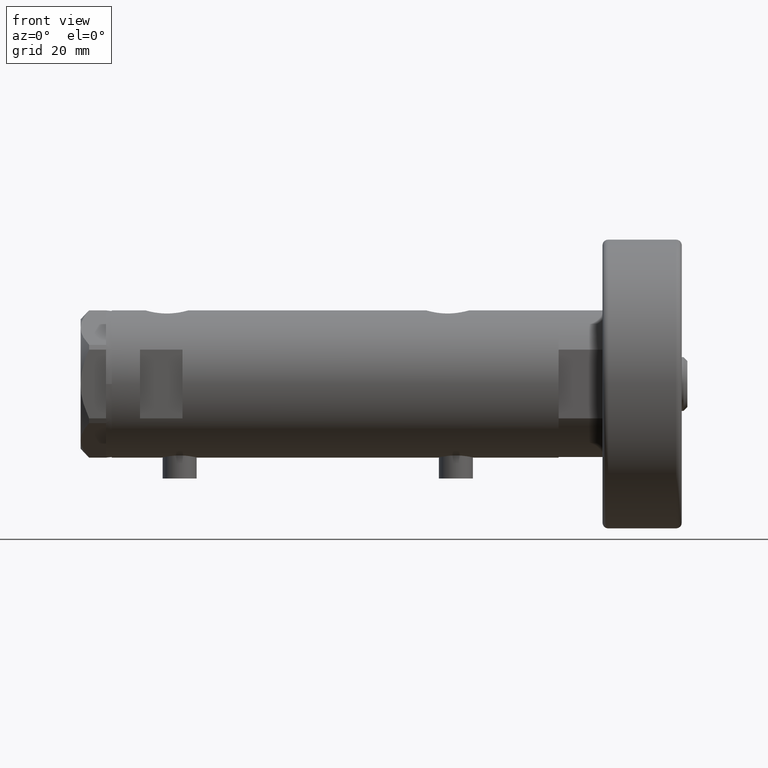
[diagram: clean part render]
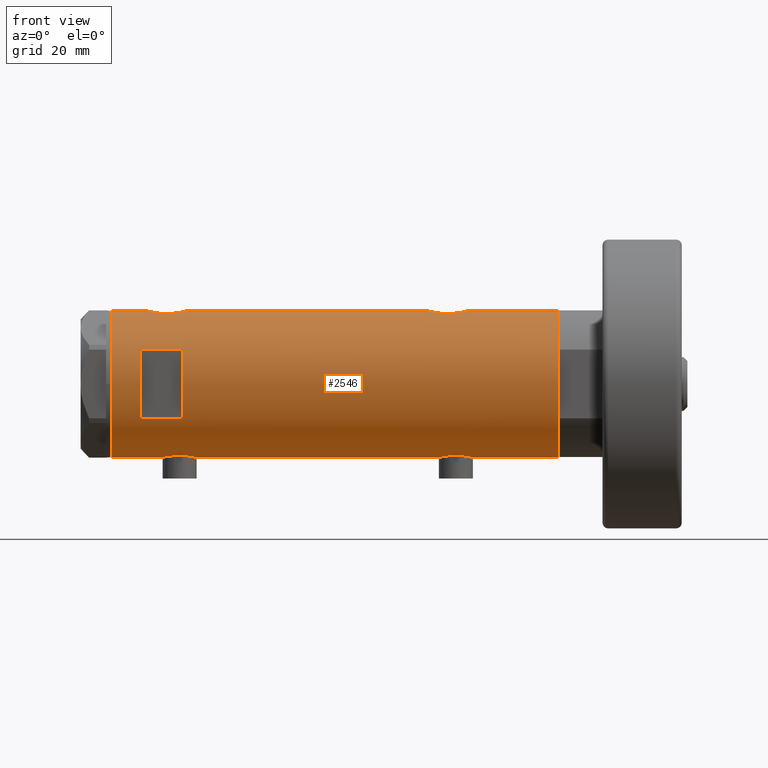
[diagram: same view with one face highlighted and labeled with its STEP entity id]
A machine part, front view. The second image highlights one B-rep face of the part: STEP entity #2546.
In plain terms, the highlighted cylindrical surface (partial cylindrical patch) has radius 26 mm, axis along (-1, -0, 0).
Its self-contained STEP definition (entity closure, byte-faithful):
#31 = CARTESIAN_POINT ( 'NONE',  ( 25.03461301890608581, -7.019803056070502478, 56.79816816893102782 ) ) ;
#55 = CARTESIAN_POINT ( 'NONE',  ( -26.00000000000000000, -0.4086738135806058381, -48.90000000000002700 ) ) ;
#60 = CARTESIAN_POINT ( 'NONE',  ( 24.90947356773250121, -7.451722770779340976, 58.46809158171851095 ) ) ;
#80 = CARTESIAN_POINT ( 'NONE',  ( -25.28632996747171902, -6.050474653715423479, -41.03088129158464881 ) ) ;
#88 = CARTESIAN_POINT ( 'NONE',  ( 25.17393786935995692, -6.507882790539421869, 55.68962666655968974 ) ) ;
#110 = CARTESIAN_POINT ( 'NONE',  ( -25.92425332714050867, -2.018894156999440526, 49.02103879324670288 ) ) ;
#119 = VECTOR ( 'NONE', #4141, 1000.000000000000000 ) ;
#122 = VECTOR ( 'NONE', #4718, 1000.000000000000000 ) ;
#124 = CARTESIAN_POINT ( 'NONE',  ( -12.12435565298214080, -23.00000000000000355, 53.95000000000001705 ) ) ;
#128 = CARTESIAN_POINT ( 'NONE',  ( 25.59500516383205593, -4.575229401795787965, -45.69787755065420498 ) ) ;
#157 = CARTESIAN_POINT ( 'NONE',  ( 25.78902964777116935, -3.336582972512946554, -46.48475840457737007 ) ) ;
#180 = CARTESIAN_POINT ( 'NONE',  ( 25.93085545515512891, -1.956676574435509686, -32.49272963169732265 ) ) ;
#210 = CIRCLE ( 'NONE', #2167, 26.00000000000000355 ) ;
#227 = CARTESIAN_POINT ( 'NONE',  ( -25.28632996747171902, -6.050474653715411932, 56.56911870841537393 ) ) ;
#238 = LINE ( 'NONE', #1392, #1158 ) ;
#258 = LINE ( 'NONE', #1875, #1916 ) ;
#275 = CARTESIAN_POINT ( 'NONE',  ( 12.12435565298214080, -23.00000000000000355, 68.95000000000003126 ) ) ;
#276 = CARTESIAN_POINT ( 'NONE',  ( -25.49846181844015192, -5.083495422175122513, 58.59177503382597507 ) ) ;
#298 = VECTOR ( 'NONE', #4416, 1000.000000000000000 ) ;
#421 = LINE ( 'NONE', #1294, #298 ) ;
#456 = CARTESIAN_POINT ( 'NONE',  ( 0.000000000000000000, 0.000000000000000000, -78.95000000000000284 ) ) ;
#471 = AXIS2_PLACEMENT_3D ( 'NONE', #3339, #2121, #2068 ) ;
#476 = CARTESIAN_POINT ( 'NONE',  ( -25.28680988956730857, -6.048472998962280300, 53.32372305811759361 ) ) ;
#491 = CARTESIAN_POINT ( 'NONE',  ( 24.89475831528845262, -7.500067228253130658, -40.24337428253534910 ) ) ;
#499 = CARTESIAN_POINT ( 'NONE',  ( -25.72076778631231164, -3.815670258243489599, -47.61687810531881127 ) ) ;
#506 = EDGE_CURVE ( 'NONE', #3918, #4106, #3116, .T. ) ;
#507 = CARTESIAN_POINT ( 'NONE',  ( 25.59500516383205948, -4.575229401795795958, 53.50212244934583339 ) ) ;
#517 = CARTESIAN_POINT ( 'NONE',  ( 25.00829008792691255, -7.115081037226466343, -37.32698996259182422 ) ) ;
#531 = CARTESIAN_POINT ( 'NONE',  ( 26.00000000000001066, -0.4982617809740563231, 51.95000000000000995 ) ) ;
#539 = CARTESIAN_POINT ( 'NONE',  ( 25.41756773306326522, -5.475260495868973898, -34.61859126343051685 ) ) ;
#548 = CARTESIAN_POINT ( 'NONE',  ( -25.24765475072630139, -6.209883762780014749, -41.83321815644903552 ) ) ;
#612 = CARTESIAN_POINT ( 'NONE',  ( -26.00000000000000355, -2.813058302341337106E-16, 61.20000000000000284 ) ) ;
#619 = DIRECTION ( 'NONE',  ( 0.000000000000000000, 0.000000000000000000, 1.000000000000000000 ) ) ;
#660 = CARTESIAN_POINT ( 'NONE',  ( -26.00000000000000355, -2.813058302341337106E-16, 61.20000000000000284 ) ) ;
#683 = CARTESIAN_POINT ( 'NONE',  ( -25.38662204309617110, -5.616507264474310368, 57.72199377719326208 ) ) ;
#686 = ORIENTED_EDGE ( 'NONE', *, *, #1417, .F. ) ;
#708 = EDGE_LOOP ( 'NONE', ( #1282, #5013, #4992, #4168 ) ) ;
#766 = LINE ( 'NONE', #3995, #2013 ) ;
#822 = CARTESIAN_POINT ( 'NONE',  ( 25.00829008792692321, -7.115081037226465455, 61.87301003740819993 ) ) ;
#827 = EDGE_CURVE ( 'NONE', #4106, #3895, #421, .T. ) ;
#845 = CARTESIAN_POINT ( 'NONE',  ( -25.99999999999998934, -0.4144764235405737907, -36.39999999999999147 ) ) ;
#869 = CARTESIAN_POINT ( 'NONE',  ( -25.57228991600092272, -4.705691472451704271, -46.78339690124655448 ) ) ;
#872 = CARTESIAN_POINT ( 'NONE',  ( -25.31551596256916525, -5.928819821281959612, 52.92988508095918831 ) ) ;
#875 = CARTESIAN_POINT ( 'NONE',  ( 25.31004928890826378, -5.952041021437455726, 64.01980599883506784 ) ) ;
#884 = CARTESIAN_POINT ( 'NONE',  ( 24.89478872726946079, -7.499966281647702182, -39.50178149365218871 ) ) ;
#895 = CARTESIAN_POINT ( 'NONE',  ( -25.42883439573801141, -5.424786127492342125, -39.51918542739093709 ) ) ;
#901 = CARTESIAN_POINT ( 'NONE',  ( -25.25025691038242570, -6.198787452305309920, 54.12558834604206481 ) ) ;
#903 = CARTESIAN_POINT ( 'NONE',  ( 25.72912156655465310, -3.765948295762495235, 52.94557024600777595 ) ) ;
#908 = CIRCLE ( 'NONE', #4872, 26.00000000000000355 ) ;
#911 = VERTEX_POINT ( 'NONE', #4564 ) ;
#918 = CARTESIAN_POINT ( 'NONE',  ( 25.17393786935995692, -6.507882790539420981, -43.51037333344031310 ) ) ;
#922 = ORIENTED_EDGE ( 'NONE', *, *, #3291, .F. ) ;
#926 = CARTESIAN_POINT ( 'NONE',  ( -25.25025691038241860, -6.198787452305317025, -43.47441165395796503 ) ) ;
#931 = CARTESIAN_POINT ( 'NONE',  ( -25.52190669608696183, -4.968444991210422934, 51.13658907807515419 ) ) ;
#947 = CARTESIAN_POINT ( 'NONE',  ( -25.85385060263651269, -2.778671585188184689, -37.03685548695762009 ) ) ;
#958 = CARTESIAN_POINT ( 'NONE',  ( 24.95200646071794282, -7.307522494171283967, -41.45607564187277205 ) ) ;
#992 = CARTESIAN_POINT ( 'NONE',  ( 24.96672817551788270, -7.257586026187393458, -37.79615800278702409 ) ) ;
#1006 = CARTESIAN_POINT ( 'NONE',  ( -25.74330903162726614, -3.648508829439214285, 60.02867714715799963 ) ) ;
#1019 = CARTESIAN_POINT ( 'NONE',  ( 26.00000000000000355, 0.000000000000000000, -78.95000000000000284 ) ) ;
#1027 = CARTESIAN_POINT ( 'NONE',  ( -25.23758491649666169, -6.250144606721704577, 55.36011699571807299 ) ) ;
#1030 = VERTEX_POINT ( 'NONE', #5114 ) ;
#1053 = CARTESIAN_POINT ( 'NONE',  ( -25.95206678899177888, -1.628763264760260565, 60.99800813330215732 ) ) ;
#1062 = VERTEX_POINT ( 'NONE', #4669 ) ;
#1099 = EDGE_LOOP ( 'NONE', ( #4483, #4044, #1440, #1949, #4518, #922, #2185, #3519, #1826, #686, #1611, #4757 ) ) ;
#1158 = VECTOR ( 'NONE', #3811, 1000.000000000000000 ) ;
#1247 = CARTESIAN_POINT ( 'NONE',  ( -26.00000000000000000, -0.4086738135806028960, 48.70000000000000995 ) ) ;
#1252 = CARTESIAN_POINT ( 'NONE',  ( 25.01107424167500781, -7.102941973849612900, 57.02937151337422250 ) ) ;
#1254 = DIRECTION ( 'NONE',  ( 0.000000000000000000, 0.000000000000000000, 1.000000000000000000 ) ) ;
#1270 = CARTESIAN_POINT ( 'NONE',  ( -25.78943824387523165, -3.306687742228911375, -47.95754138783466658 ) ) ;
#1278 = DIRECTION ( 'NONE',  ( 1.000000000000000000, 0.000000000000000000, 0.000000000000000000 ) ) ;
#1282 = ORIENTED_EDGE ( 'NONE', *, *, #2339, .F. ) ;
#1288 = CARTESIAN_POINT ( 'NONE',  ( 25.52567976009756379, -4.956266804246105551, -34.09980072540906093 ) ) ;
#1294 = CARTESIAN_POINT ( 'NONE',  ( -26.00000000000000355, 3.184081677783118585E-15, -78.95000000000000284 ) ) ;
#1297 = EDGE_CURVE ( 'NONE', #4038, #1062, #2402, .T. ) ;
#1302 = CARTESIAN_POINT ( 'NONE',  ( 25.52449676677458612, -4.953491517965881386, 53.81325508665923962 ) ) ;
#1312 = CARTESIAN_POINT ( 'NONE',  ( 25.98599366666249466, -0.9828433289544072915, -32.29811598276526752 ) ) ;
#1325 = DIRECTION ( 'NONE',  ( 0.000000000000000000, 0.000000000000000000, 1.000000000000000000 ) ) ;
#1330 = CARTESIAN_POINT ( 'NONE',  ( -25.57228991600092627, -4.705691472451699831, 50.81660309875346826 ) ) ;
#1333 = CARTESIAN_POINT ( 'NONE',  ( 24.92415241886516242, -7.401968919186685092, 60.68323537444815940 ) ) ;
#1352 = CARTESIAN_POINT ( 'NONE',  ( -25.57167894663063024, -4.701762988462101944, -38.52719549807584798 ) ) ;
#1361 = CARTESIAN_POINT ( 'NONE',  ( 25.41756773306325456, -5.475260495868974786, 64.58140873656947178 ) ) ;
#1369 = CARTESIAN_POINT ( 'NONE',  ( 25.59665538672496155, -4.580438224580676732, -33.79110872287610334 ) ) ;
#1378 = CARTESIAN_POINT ( 'NONE',  ( -25.52274351135604391, -4.960534548086211970, -38.84248254659267729 ) ) ;
#1381 = CARTESIAN_POINT ( 'NONE',  ( -25.81232680456767170, -3.137210741985118290, 60.37113657221578933 ) ) ;
#1392 = CARTESIAN_POINT ( 'NONE',  ( 26.00000000000000355, 0.000000000000000000, -78.95000000000000284 ) ) ;
#1396 = CARTESIAN_POINT ( 'NONE',  ( 25.38125492692910612, -5.649348210287294059, -44.70694334346394072 ) ) ;
#1417 = EDGE_CURVE ( 'NONE', #3895, #3227, #4252, .T. ) ;
#1440 = ORIENTED_EDGE ( 'NONE', *, *, #3926, .T. ) ;
#1463 = CARTESIAN_POINT ( 'NONE',  ( -25.52274351135605102, -4.960534548086199536, 58.75751745340734544 ) ) ;
#1494 = CARTESIAN_POINT ( 'NONE',  ( 0.000000000000000000, 0.000000000000000000, 78.95000000000000284 ) ) ;
#1508 = CARTESIAN_POINT ( 'NONE',  ( 12.12435565298214080, -23.00000000000000355, -78.95000000000000284 ) ) ;
#1542 = VERTEX_POINT ( 'NONE', #3949 ) ;
#1571 = CARTESIAN_POINT ( 'NONE',  ( 25.98599366666249111, -0.9828433289544116214, 66.90188401723474954 ) ) ;
#1611 = ORIENTED_EDGE ( 'NONE', *, *, #827, .F. ) ;
#1679 = CARTESIAN_POINT ( 'NONE',  ( 25.30930190055639883, -5.959775463244125326, 54.87025956521971892 ) ) ;
#1694 = CARTESIAN_POINT ( 'NONE',  ( -25.42977453177914882, -5.420307583276860797, -45.78812271793364630 ) ) ;
#1696 = CARTESIAN_POINT ( 'NONE',  ( -25.99036913299955742, -0.8159609457881432659, 48.73968856968109264 ) ) ;
#1698 = CARTESIAN_POINT ( 'NONE',  ( 25.48871066912673200, -5.133852125086510121, 53.97709693256022234 ) ) ;
#1706 = CARTESIAN_POINT ( 'NONE',  ( 25.38109653984943748, -5.641393955635659374, -34.80180907551250158 ) ) ;
#1714 = CARTESIAN_POINT ( 'NONE',  ( -25.85288666140180780, -2.767917424206675747, 49.34257790010328648 ) ) ;
#1746 = CARTESIAN_POINT ( 'NONE',  ( 25.62983961939740496, -4.376509667782458202, 53.35441500957042393 ) ) ;
#1758 = CARTESIAN_POINT ( 'NONE',  ( 25.17510548814053095, -6.503212750695464450, -35.98238212184651275 ) ) ;
#1760 = VERTEX_POINT ( 'NONE', #3744 ) ;
#1769 = CARTESIAN_POINT ( 'NONE',  ( -25.81160981652327280, -3.129523010631800606, -48.06392973722076079 ) ) ;
#1784 = DIRECTION ( 'NONE',  ( 1.000000000000000000, 0.000000000000000000, 0.000000000000000000 ) ) ;
#1787 = CARTESIAN_POINT ( 'NONE',  ( 25.98569226047905190, -0.9886551788957271825, -47.20082376600176133 ) ) ;
#1795 = CARTESIAN_POINT ( 'NONE',  ( 26.00000000000000355, -3.975025925197986111E-20, -32.25000000000000000 ) ) ;
#1826 = ORIENTED_EDGE ( 'NONE', *, *, #3147, .F. ) ;
#1827 = DIRECTION ( 'NONE',  ( 0.000000000000000000, 0.000000000000000000, 1.000000000000000000 ) ) ;
#1869 = CARTESIAN_POINT ( 'NONE',  ( -25.31538696791480447, -5.929326713517952818, 56.96796632208098998 ) ) ;
#1875 = CARTESIAN_POINT ( 'NONE',  ( 26.00000000000000355, 0.000000000000000000, -78.95000000000000284 ) ) ;
#1916 = VECTOR ( 'NONE', #3807, 1000.000000000000000 ) ;
#1930 = CARTESIAN_POINT ( 'NONE',  ( -26.00000000000000355, 3.184077527325983904E-15, -48.90000000000001279 ) ) ;
#1949 = ORIENTED_EDGE ( 'NONE', *, *, #1297, .F. ) ;
#1977 = CARTESIAN_POINT ( 'NONE',  ( 25.89059789403177092, -2.425642437452263156, 66.56377447242300605 ) ) ;
#2013 = VECTOR ( 'NONE', #1254, 1000.000000000000000 ) ;
#2049 = CARTESIAN_POINT ( 'NONE',  ( -25.67063510297210271, -4.128418051804850997, -37.95317424728735034 ) ) ;
#2054 = CARTESIAN_POINT ( 'NONE',  ( 24.96970063328116751, -7.247045583599690310, 57.50280785145197626 ) ) ;
#2056 = DIRECTION ( 'NONE',  ( 0.000000000000000000, 0.000000000000000000, 1.000000000000000000 ) ) ;
#2068 = DIRECTION ( 'NONE',  ( 1.776356839400250465E-15, 1.000000000000000000, 4.536969091016264466E-15 ) ) ;
#2077 = CARTESIAN_POINT ( 'NONE',  ( -25.28680988956730147, -6.048472998962283853, -44.27627694188245755 ) ) ;
#2089 = CARTESIAN_POINT ( 'NONE',  ( 24.91324908721446718, -7.438459228814661373, 60.44017499374191260 ) ) ;
#2101 = CARTESIAN_POINT ( 'NONE',  ( 25.03461301890608581, -7.019803056070506031, -42.40183183106896792 ) ) ;
#2107 = CARTESIAN_POINT ( 'NONE',  ( -25.64593536028936072, -4.278686337618966995, -38.08968397039122067 ) ) ;
#2121 = DIRECTION ( 'NONE',  ( -0.000000000000000000, -4.625929269271486900E-15, 1.000000000000000000 ) ) ;
#2122 = CARTESIAN_POINT ( 'NONE',  ( 25.30930190055640239, -5.959775463244125326, -44.32974043478029103 ) ) ;
#2129 = CARTESIAN_POINT ( 'NONE',  ( -25.23763877699558122, -6.249927116972450847, -42.85835527665468447 ) ) ;
#2167 = AXIS2_PLACEMENT_3D ( 'NONE', #3093, #3870, #1784 ) ;
#2175 = CARTESIAN_POINT ( 'NONE',  ( 24.92415241886515176, -7.401968919186680651, -38.51676462555185054 ) ) ;
#2185 = ORIENTED_EDGE ( 'NONE', *, *, #3183, .T. ) ;
#2188 = CARTESIAN_POINT ( 'NONE',  ( -25.99009752186832500, -0.8230863847107482423, 61.15917071406682481 ) ) ;
#2197 = CARTESIAN_POINT ( 'NONE',  ( 25.88994451797511331, -2.432613607265599498, -46.86140968713201005 ) ) ;
#2282 = CARTESIAN_POINT ( 'NONE',  ( -25.59645788645698872, -4.565358797148513226, 59.22330529203479443 ) ) ;
#2306 = EDGE_CURVE ( 'NONE', #1542, #3495, #3678, .T. ) ;
#2339 = EDGE_CURVE ( 'NONE', #3495, #4959, #4016, .T. ) ;
#2402 = B_SPLINE_CURVE_WITH_KNOTS ( 'NONE', 3,
 ( #3756, #4916, #1312, #180, #4557, #2913, #2892, #1369, #1288, #539, #1706, #4142, #2490, #1758, #4112, #517, #992, #2175, #4498, #4581, #884, #491, #4165, #958, #4530, #2570, #2101, #3788, #918, #2122, #1396, #3340, #4946, #128, #4976, #4195, #157, #2197, #3395, #1787, #4610, #2597 ),
 .UNSPECIFIED., .F., .F.,
 ( 4, 2, 2, 2, 2, 2, 2, 2, 2, 2, 2, 2, 2, 2, 2, 2, 2, 2, 2, 2, 4 ),
 ( 0.02357432247332888128, 0.02504731828495719570, 0.02652031409658551359, 0.02799330990821382800, 0.02946630571984214589, 0.03020280362565630136, 0.03093930153147046030, 0.03241229734309879207, 0.03388529315472712383, 0.03462179106054129318, 0.03535828896635545560, 0.03683128477798380818, 0.03756778268379799834, 0.03830428058961218157, 0.03977727640124056885, 0.04125027221286896306, 0.04198677011868315323, 0.04272326802449734340, 0.04419626383612573067, 0.04566925964775411795, 0.04714225545938250522 ),
 .UNSPECIFIED. ) ;
#2420 = CARTESIAN_POINT ( 'NONE',  ( 24.89854802586675930, -7.487520416261737033, 59.94815683577904508 ) ) ;
#2442 = CARTESIAN_POINT ( 'NONE',  ( -26.00000000000000355, -6.335391871414786776E-16, -36.39999999999999858 ) ) ;
#2447 = CARTESIAN_POINT ( 'NONE',  ( -25.81160981652327280, -3.129523010631799718, 49.53607026277927616 ) ) ;
#2477 = CARTESIAN_POINT ( 'NONE',  ( 25.98569226047905545, -0.9886551788957260722, 51.99917623399824151 ) ) ;
#2482 = CARTESIAN_POINT ( 'NONE',  ( 12.12435565298214080, -23.00000000000000355, 53.95000000000001705 ) ) ;
#2490 = CARTESIAN_POINT ( 'NONE',  ( 25.27534302296961854, -6.097250460344746159, -35.37590386902926554 ) ) ;
#2500 = CARTESIAN_POINT ( 'NONE',  ( -25.59645788645699227, -4.565358797148523884, -38.37669470796522120 ) ) ;
#2511 = CARTESIAN_POINT ( 'NONE',  ( 25.11342038069227200, -6.734617143597204425, 62.78770695790495893 ) ) ;
#2528 = CARTESIAN_POINT ( 'NONE',  ( -25.24022290516699485, -6.239518219915436426, -43.06597215938434431 ) ) ;
#2537 = CARTESIAN_POINT ( 'NONE',  ( 25.38109653984944103, -5.641393955635662039, 64.39819092448752258 ) ) ;
#2546 = ADVANCED_FACE ( 'NONE', ( #3286, #2887 ), #4522, .T. ) ;
#2556 = CARTESIAN_POINT ( 'NONE',  ( -25.99009752186832856, -0.8230863847107483533, -36.44082928593318371 ) ) ;
#2570 = CARTESIAN_POINT ( 'NONE',  ( 25.01107424167501136, -7.102941973849614676, -42.17062848662576613 ) ) ;
#2597 = CARTESIAN_POINT ( 'NONE',  ( 26.00000000000000355, 3.343657407582877388E-16, -47.25000000000000000 ) ) ;
#2612 = VERTEX_POINT ( 'NONE', #275 ) ;
#2694 = CARTESIAN_POINT ( 'NONE',  ( -25.57167894663061958, -4.701762988462087733, 59.07280450192418186 ) ) ;
#2752 = CARTESIAN_POINT ( 'NONE',  ( 26.00000000000000355, -0.4910237949823177406, 66.94999999999998863 ) ) ;
#2858 = EDGE_CURVE ( 'NONE', #3937, #5117, #4197, .T. ) ;
#2864 = CARTESIAN_POINT ( 'NONE',  ( 25.52567976009757089, -4.956266804246109103, 65.10019927459094902 ) ) ;
#2881 = CARTESIAN_POINT ( 'NONE',  ( -25.38744165544136777, -5.612847683295916212, -45.42987583238478067 ) ) ;
#2884 = CARTESIAN_POINT ( 'NONE',  ( 25.59665538672496865, -4.580438224580679396, 65.40889127712388529 ) ) ;
#2887 = FACE_BOUND ( 'NONE', #708, .T. ) ;
#2892 = CARTESIAN_POINT ( 'NONE',  ( 25.72873412774685775, -3.768477344985552424, -33.24712539855536164 ) ) ;
#2913 = CARTESIAN_POINT ( 'NONE',  ( 25.78993643992928853, -3.329561377902402697, -33.01178439721263658 ) ) ;
#2925 = CARTESIAN_POINT ( 'NONE',  ( -25.87202607293666645, -2.583404329177997116, -48.34473666854512430 ) ) ;
#2927 = VECTOR ( 'NONE', #619, 1000.000000000000000 ) ;
#2932 = CARTESIAN_POINT ( 'NONE',  ( -26.00000000000000355, 3.184077527313362130E-15, 48.70000000000000995 ) ) ;
#2954 = CARTESIAN_POINT ( 'NONE',  ( -25.71926338401909362, -3.813768894920912977, -37.69427860166183564 ) ) ;
#2978 = CARTESIAN_POINT ( 'NONE',  ( -25.92364458890659762, -2.026637113504532017, -36.72369009308525278 ) ) ;
#2988 = EDGE_CURVE ( 'NONE', #4959, #2612, #3501, .T. ) ;
#3012 = CARTESIAN_POINT ( 'NONE',  ( -25.24765475072630139, -6.209883762780005867, 55.76678184355100854 ) ) ;
#3033 = LINE ( 'NONE', #1019, #2927 ) ;
#3093 = CARTESIAN_POINT ( 'NONE',  ( 0.000000000000000000, 0.000000000000000000, 68.95000000000003126 ) ) ;
#3116 = B_SPLINE_CURVE_WITH_KNOTS ( 'NONE', 3,
 ( #1930, #55, #4506, #4903, #4092, #2925, #3689, #1769, #1270, #499, #4067, #869, #3277, #1694, #2881, #3350, #2077, #4540, #926, #2528, #2129, #4123, #548, #80, #3376, #4984, #895, #4958, #1378, #1352, #2500, #2107, #2049, #2954, #3768, #4565, #947, #2978, #3721, #2556, #845, #2442 ),
 .UNSPECIFIED., .F., .F.,
 ( 4, 2, 2, 2, 2, 2, 2, 2, 2, 2, 2, 2, 2, 2, 2, 2, 2, 2, 2, 2, 4 ),
 ( 0.01961238453869445370, 0.02083783025472768849, 0.02206327597076092328, 0.02267599882877753895, 0.02328872168679415461, 0.02451416740282739287, 0.02573961311886063114, 0.02696505883489386593, 0.02819050455092710072, 0.02880322740894371292, 0.02941595026696031817, 0.03064139598299353562, 0.03186684169902675307, 0.03309228741505997051, 0.03370501027307658271, 0.03431773313109318796, 0.03493045598910979321, 0.03554317884712640541, 0.03676862456315962979, 0.03799407027919286112, 0.03921951599522608550 ),
 .UNSPECIFIED. ) ;
#3142 = CARTESIAN_POINT ( 'NONE',  ( 26.00000000000000355, -3.975028449552882818E-20, 66.95000000000000284 ) ) ;
#3147 = EDGE_CURVE ( 'NONE', #3227, #1030, #5104, .T. ) ;
#3163 = EDGE_CURVE ( 'NONE', #2612, #1542, #210, .T. ) ;
#3183 = EDGE_CURVE ( 'NONE', #4911, #911, #238, .T. ) ;
#3227 = VERTEX_POINT ( 'NONE', #612 ) ;
#3277 = CARTESIAN_POINT ( 'NONE',  ( -25.52190669608696183, -4.968444991210430040, -46.46341092192485434 ) ) ;
#3282 = CARTESIAN_POINT ( 'NONE',  ( -25.95218276861526618, -1.627663810194429406, 48.90149019612395165 ) ) ;
#3286 = FACE_OUTER_BOUND ( 'NONE', #1099, .T. ) ;
#3291 = EDGE_CURVE ( 'NONE', #4911, #1760, #5075, .T. ) ;
#3326 = CARTESIAN_POINT ( 'NONE',  ( -25.72076778631231164, -3.815670258243487378, 49.98312189468122568 ) ) ;
#3329 = CARTESIAN_POINT ( 'NONE',  ( 25.78902964777116580, -3.336582972512951883, 52.71524159542262566 ) ) ;
#3339 = CARTESIAN_POINT ( 'NONE',  ( 0.000000000000000000, 0.000000000000000000, 53.95000000000012363 ) ) ;
#3340 = CARTESIAN_POINT ( 'NONE',  ( 25.48871066912673200, -5.133852125086511009, -45.22290306743978050 ) ) ;
#3350 = CARTESIAN_POINT ( 'NONE',  ( -25.31551596256916525, -5.928819821281963165, -44.67011491904084153 ) ) ;
#3360 = CARTESIAN_POINT ( 'NONE',  ( 26.00000000000000355, -7.221007372182803218E-17, 51.95000000000000284 ) ) ;
#3376 = CARTESIAN_POINT ( 'NONE',  ( -25.31538696791481868, -5.929326713517960812, -40.63203367791900433 ) ) ;
#3378 = CARTESIAN_POINT ( 'NONE',  ( 0.000000000000000000, 0.000000000000000000, -78.95000000000000284 ) ) ;
#3395 = CARTESIAN_POINT ( 'NONE',  ( 25.93098857934040424, -1.953835360821274847, -47.00773664702559529 ) ) ;
#3410 = DIRECTION ( 'NONE',  ( 1.000000000000000000, 0.000000000000000000, 0.000000000000000000 ) ) ;
#3413 = EDGE_CURVE ( 'NONE', #4038, #1760, #3033, .T. ) ;
#3464 = CARTESIAN_POINT ( 'NONE',  ( -25.92364458890658696, -2.026637113504536458, 60.87630990691475574 ) ) ;
#3494 = DIRECTION ( 'NONE',  ( 0.000000000000000000, 0.000000000000000000, 1.000000000000000000 ) ) ;
#3495 = VERTEX_POINT ( 'NONE', #124 ) ;
#3501 = LINE ( 'NONE', #1508, #122 ) ;
#3519 = ORIENTED_EDGE ( 'NONE', *, *, #3927, .F. ) ;
#3595 = CARTESIAN_POINT ( 'NONE',  ( 25.78993643992928497, -3.329561377902408914, 66.18821560278735205 ) ) ;
#3666 = CARTESIAN_POINT ( 'NONE',  ( 25.11243836838845667, -6.738202653785824836, 56.12043350844841427 ) ) ;
#3678 = LINE ( 'NONE', #3786, #119 ) ;
#3689 = CARTESIAN_POINT ( 'NONE',  ( -25.85288666140181491, -2.767917424206677079, -48.25742209989675047 ) ) ;
#3698 = CARTESIAN_POINT ( 'NONE',  ( 24.89478872726946079, -7.499966281647701294, 59.69821850634782123 ) ) ;
#3721 = CARTESIAN_POINT ( 'NONE',  ( -25.95206678899177888, -1.628763264760263230, -36.60199186669786542 ) ) ;
#3744 = CARTESIAN_POINT ( 'NONE',  ( 26.00000000000000355, -7.221007372182803218E-17, 51.95000000000000284 ) ) ;
#3756 = CARTESIAN_POINT ( 'NONE',  ( 26.00000000000000355, -3.975025925197986111E-20, -32.25000000000000000 ) ) ;
#3768 = CARTESIAN_POINT ( 'NONE',  ( -25.74330903162725903, -3.648508829439220946, -37.57132285284201600 ) ) ;
#3786 = CARTESIAN_POINT ( 'NONE',  ( -12.12435565298214080, -23.00000000000000355, -78.95000000000000284 ) ) ;
#3788 = CARTESIAN_POINT ( 'NONE',  ( 25.11243836838845667, -6.738202653785825724, -43.07956649155158146 ) ) ;
#3807 = DIRECTION ( 'NONE',  ( 0.000000000000000000, 0.000000000000000000, 1.000000000000000000 ) ) ;
#3811 = DIRECTION ( 'NONE',  ( 0.000000000000000000, 0.000000000000000000, 1.000000000000000000 ) ) ;
#3870 = DIRECTION ( 'NONE',  ( -0.000000000000000000, 0.000000000000000000, -1.000000000000000000 ) ) ;
#3890 = CARTESIAN_POINT ( 'NONE',  ( -26.00000000000000355, 3.184077527325983904E-15, -48.90000000000001279 ) ) ;
#3895 = VERTEX_POINT ( 'NONE', #4216 ) ;
#3906 = CARTESIAN_POINT ( 'NONE',  ( 26.00000000000000355, 0.000000000000000000, -78.95000000000000284 ) ) ;
#3918 = VERTEX_POINT ( 'NONE', #3890 ) ;
#3926 = EDGE_CURVE ( 'NONE', #5117, #1062, #258, .T. ) ;
#3927 = EDGE_CURVE ( 'NONE', #1030, #911, #908, .T. ) ;
#3937 = VERTEX_POINT ( 'NONE', #4705 ) ;
#3949 = CARTESIAN_POINT ( 'NONE',  ( -12.12435565298214080, -23.00000000000000355, 68.95000000000003126 ) ) ;
#3995 = CARTESIAN_POINT ( 'NONE',  ( -26.00000000000000355, 3.184081677783118585E-15, -78.95000000000000284 ) ) ;
#4016 = CIRCLE ( 'NONE', #471, 26.00000000000000355 ) ;
#4038 = VERTEX_POINT ( 'NONE', #1795 ) ;
#4044 = ORIENTED_EDGE ( 'NONE', *, *, #2858, .T. ) ;
#4047 = CARTESIAN_POINT ( 'NONE',  ( 24.95200646071793926, -7.307522494171281302, 57.74392435812723079 ) ) ;
#4067 = CARTESIAN_POINT ( 'NONE',  ( -25.67167563980648382, -4.129238867693854509, -47.35934056431105432 ) ) ;
#4074 = CARTESIAN_POINT ( 'NONE',  ( 25.17510548814053450, -6.503212750695461786, 63.21761787815348299 ) ) ;
#4092 = CARTESIAN_POINT ( 'NONE',  ( -25.92425332714050867, -2.018894156999445411, -48.57896120675330565 ) ) ;
#4100 = CARTESIAN_POINT ( 'NONE',  ( 25.27534302296961854, -6.097250460344744383, 63.82409613097077283 ) ) ;
#4106 = VERTEX_POINT ( 'NONE', #4586 ) ;
#4112 = CARTESIAN_POINT ( 'NONE',  ( 25.11342038069227200, -6.734617143597207978, -36.41229304209507234 ) ) ;
#4123 = CARTESIAN_POINT ( 'NONE',  ( -25.23758491649667235, -6.250144606721711682, -42.23988300428196396 ) ) ;
#4141 = DIRECTION ( 'NONE',  ( -0.000000000000000000, -0.000000000000000000, -1.000000000000000000 ) ) ;
#4142 = CARTESIAN_POINT ( 'NONE',  ( 25.31004928890824957, -5.952041021437452173, -35.18019400116495632 ) ) ;
#4152 = CARTESIAN_POINT ( 'NONE',  ( -25.42977453177915947, -5.420307583276853691, 51.81187728206638354 ) ) ;
#4157 = CARTESIAN_POINT ( 'NONE',  ( 25.93098857934041135, -1.953835360821271960, 52.19226335297440755 ) ) ;
#4160 = EDGE_CURVE ( 'NONE', #3937, #3918, #766, .T. ) ;
#4165 = CARTESIAN_POINT ( 'NONE',  ( 24.90947356773249766, -7.451722770779341865, -40.73190841828151321 ) ) ;
#4168 = ORIENTED_EDGE ( 'NONE', *, *, #2988, .F. ) ;
#4195 = CARTESIAN_POINT ( 'NONE',  ( 25.72912156655465665, -3.765948295762491238, -46.25442975399223400 ) ) ;
#4197 = CIRCLE ( 'NONE', #4525, 26.00000000000000355 ) ;
#4208 = DIRECTION ( 'NONE',  ( 1.000000000000000000, 0.000000000000000000, 0.000000000000000000 ) ) ;
#4216 = CARTESIAN_POINT ( 'NONE',  ( -26.00000000000000355, 3.184077527313362130E-15, 48.70000000000000995 ) ) ;
#4252 = B_SPLINE_CURVE_WITH_KNOTS ( 'NONE', 3,
 ( #2932, #1247, #1696, #3282, #110, #4887, #1714, #2447, #4906, #3326, #4962, #1330, #931, #4152, #4490, #872, #476, #4514, #901, #4653, #4700, #1027, #3012, #227, #1869, #683, #5070, #276, #1463, #2694, #2282, #4990, #4627, #4315, #1006, #1381, #4673, #3464, #1053, #2188, #5042, #660 ),
 .UNSPECIFIED., .F., .F.,
 ( 4, 2, 2, 2, 2, 2, 2, 2, 2, 2, 2, 2, 2, 2, 2, 2, 2, 2, 2, 2, 4 ),
 ( 0.01961238453869442941, 0.02083783025472767114, 0.02206327597076090941, 0.02267599882877753201, 0.02328872168679415461, 0.02451416740282739287, 0.02573961311886063114, 0.02696505883489386940, 0.02819050455092710766, 0.02880322740894371986, 0.02941595026696032858, 0.03064139598299354950, 0.03186684169902676694, 0.03309228741505998439, 0.03370501027307658271, 0.03431773313109318796, 0.03493045598910978627, 0.03554317884712639153, 0.03676862456315960898, 0.03799407027919282642, 0.03921951599522604387 ),
 .UNSPECIFIED. ) ;
#4262 = CARTESIAN_POINT ( 'NONE',  ( -26.00000000000000355, 3.184081677783118585E-15, -78.95000000000000284 ) ) ;
#4315 = CARTESIAN_POINT ( 'NONE',  ( -25.71926338401908652, -3.813768894920905872, 59.90572139833817289 ) ) ;
#4345 = CARTESIAN_POINT ( 'NONE',  ( 26.00000000000000355, -3.975028449552882818E-20, 66.95000000000000284 ) ) ;
#4364 = VECTOR ( 'NONE', #1827, 1000.000000000000000 ) ;
#4416 = DIRECTION ( 'NONE',  ( 0.000000000000000000, 0.000000000000000000, 1.000000000000000000 ) ) ;
#4446 = CARTESIAN_POINT ( 'NONE',  ( 24.96672817551787560, -7.257586026187392569, 61.40384199721296454 ) ) ;
#4483 = ORIENTED_EDGE ( 'NONE', *, *, #4160, .F. ) ;
#4490 = CARTESIAN_POINT ( 'NONE',  ( -25.38744165544137132, -5.612847683295914436, 52.17012416761526339 ) ) ;
#4498 = CARTESIAN_POINT ( 'NONE',  ( 24.91324908721445652, -7.438459228814655155, -38.75982500625809024 ) ) ;
#4506 = CARTESIAN_POINT ( 'NONE',  ( -25.99036913299956453, -0.8159609457881494832, -48.86031143031891588 ) ) ;
#4514 = CARTESIAN_POINT ( 'NONE',  ( -25.25769689814630325, -6.168504065326071206, 53.92353364703255636 ) ) ;
#4518 = ORIENTED_EDGE ( 'NONE', *, *, #3413, .T. ) ;
#4519 = CARTESIAN_POINT ( 'NONE',  ( 25.38125492692910967, -5.649348210287291394, 54.49305665653605502 ) ) ;
#4522 = CYLINDRICAL_SURFACE ( 'NONE', #4769, 26.00000000000000355 ) ;
#4525 = AXIS2_PLACEMENT_3D ( 'NONE', #3378, #1325, #4208 ) ;
#4530 = CARTESIAN_POINT ( 'NONE',  ( 24.96970063328116751, -7.247045583599693863, -41.69719214854801237 ) ) ;
#4540 = CARTESIAN_POINT ( 'NONE',  ( -25.25769689814629615, -6.168504065326074759, -43.67646635296746638 ) ) ;
#4549 = CARTESIAN_POINT ( 'NONE',  ( 25.72873412774686486, -3.768477344985556421, 65.95287460144461988 ) ) ;
#4557 = CARTESIAN_POINT ( 'NONE',  ( 25.89059789403177447, -2.425642437452257383, -32.63622552757698969 ) ) ;
#4564 = CARTESIAN_POINT ( 'NONE',  ( 26.00000000000000355, 0.000000000000000000, 78.95000000000000284 ) ) ;
#4565 = CARTESIAN_POINT ( 'NONE',  ( -25.81232680456767170, -3.137210741985124507, -37.22886342778421920 ) ) ;
#4581 = CARTESIAN_POINT ( 'NONE',  ( 24.89854802586676286, -7.487520416261737921, -39.25184316422095065 ) ) ;
#4586 = CARTESIAN_POINT ( 'NONE',  ( -26.00000000000000355, -6.335391871414786776E-16, -36.39999999999999858 ) ) ;
#4610 = CARTESIAN_POINT ( 'NONE',  ( 25.99999999999999645, -0.4982617809740603199, -47.24999999999999289 ) ) ;
#4627 = CARTESIAN_POINT ( 'NONE',  ( -25.67063510297210271, -4.128418051804841227, 59.64682575271267240 ) ) ;
#4653 = CARTESIAN_POINT ( 'NONE',  ( -25.24022290516698419, -6.239518219915426656, 54.53402784061568553 ) ) ;
#4669 = CARTESIAN_POINT ( 'NONE',  ( 26.00000000000000355, 3.343657407582877388E-16, -47.25000000000000000 ) ) ;
#4673 = CARTESIAN_POINT ( 'NONE',  ( -25.85385060263650203, -2.778671585188186910, 60.56314451304238133 ) ) ;
#4700 = CARTESIAN_POINT ( 'NONE',  ( -25.23763877699556701, -6.249927116972441965, 54.74164472334533116 ) ) ;
#4705 = CARTESIAN_POINT ( 'NONE',  ( -26.00000000000000355, 3.184081677783118585E-15, -78.95000000000000284 ) ) ;
#4718 = DIRECTION ( 'NONE',  ( 0.000000000000000000, 0.000000000000000000, 1.000000000000000000 ) ) ;
#4757 = ORIENTED_EDGE ( 'NONE', *, *, #506, .F. ) ;
#4769 = AXIS2_PLACEMENT_3D ( 'NONE', #456, #2056, #1278 ) ;
#4785 = CARTESIAN_POINT ( 'NONE',  ( 25.93085545515512536, -1.956676574435512794, 66.70727036830264467 ) ) ;
#4866 = CARTESIAN_POINT ( 'NONE',  ( 24.89475831528844907, -7.500067228253130658, 58.95662571746464664 ) ) ;
#4872 = AXIS2_PLACEMENT_3D ( 'NONE', #1494, #3494, #3410 ) ;
#4887 = CARTESIAN_POINT ( 'NONE',  ( -25.87202607293666645, -2.583404329177992675, 49.25526333145489133 ) ) ;
#4903 = CARTESIAN_POINT ( 'NONE',  ( -25.95218276861526263, -1.627663810194436067, -48.69850980387603556 ) ) ;
#4906 = CARTESIAN_POINT ( 'NONE',  ( -25.78943824387524231, -3.306687742228910487, 49.64245861216535616 ) ) ;
#4911 = VERTEX_POINT ( 'NONE', #4345 ) ;
#4916 = CARTESIAN_POINT ( 'NONE',  ( 26.00000000000001066, -0.4910237949823163528, -32.25000000000000711 ) ) ;
#4934 = CARTESIAN_POINT ( 'NONE',  ( 25.88994451797512397, -2.432613607265602162, 52.33859031286799279 ) ) ;
#4946 = CARTESIAN_POINT ( 'NONE',  ( 25.52449676677459678, -4.953491517965876945, -45.38674491334075611 ) ) ;
#4958 = CARTESIAN_POINT ( 'NONE',  ( -25.49846181844014126, -5.083495422175134060, -39.00822496617402635 ) ) ;
#4959 = VERTEX_POINT ( 'NONE', #2482 ) ;
#4962 = CARTESIAN_POINT ( 'NONE',  ( -25.67167563980648382, -4.129238867693851844, 50.24065943568894710 ) ) ;
#4976 = CARTESIAN_POINT ( 'NONE',  ( 25.62983961939740141, -4.376509667782454649, -45.84558499042960733 ) ) ;
#4984 = CARTESIAN_POINT ( 'NONE',  ( -25.38662204309617465, -5.616507264474316585, -39.87800622280675356 ) ) ;
#4990 = CARTESIAN_POINT ( 'NONE',  ( -25.64593536028936782, -4.278686337618957225, 59.51031602960879496 ) ) ;
#4992 = ORIENTED_EDGE ( 'NONE', *, *, #3163, .F. ) ;
#5013 = ORIENTED_EDGE ( 'NONE', *, *, #2306, .F. ) ;
#5042 = CARTESIAN_POINT ( 'NONE',  ( -25.99999999999998934, -0.4144764235405755670, 61.19999999999998153 ) ) ;
#5070 = CARTESIAN_POINT ( 'NONE',  ( -25.42883439573800430, -5.424786127492328802, 58.08081457260910696 ) ) ;
#5075 = B_SPLINE_CURVE_WITH_KNOTS ( 'NONE', 3,
 ( #3142, #2752, #1571, #4785, #1977, #3595, #4549, #2884, #2864, #1361, #2537, #875, #4100, #4074, #2511, #822, #4446, #1333, #2089, #2420, #3698, #4866, #60, #4047, #2054, #1252, #31, #3666, #88, #1679, #4519, #1698, #1302, #507, #1746, #903, #3329, #4934, #4157, #2477, #531, #3360 ),
 .UNSPECIFIED., .F., .F.,
 ( 4, 2, 2, 2, 2, 2, 2, 2, 2, 2, 2, 2, 2, 2, 2, 2, 2, 2, 2, 2, 4 ),
 ( 0.02357432247332888128, 0.02504731828495720264, 0.02652031409658552746, 0.02799330990821384882, 0.02946630571984217017, 0.03020280362565634646, 0.03093930153147052275, 0.03241229734309883370, 0.03388529315472715159, 0.03462179106054130706, 0.03535828896635546947, 0.03683128477798380818, 0.03756778268379798447, 0.03830428058961215382, 0.03977727640124052721, 0.04125027221286890755, 0.04198677011868309772, 0.04272326802449730176, 0.04419626383612570292, 0.04566925964775411101, 0.04714225545938251910 ),
 .UNSPECIFIED. ) ;
#5104 = LINE ( 'NONE', #4262, #4364 ) ;
#5114 = CARTESIAN_POINT ( 'NONE',  ( -26.00000000000000355, 3.184081677783118585E-15, 78.95000000000000284 ) ) ;
#5117 = VERTEX_POINT ( 'NONE', #3906 ) ;